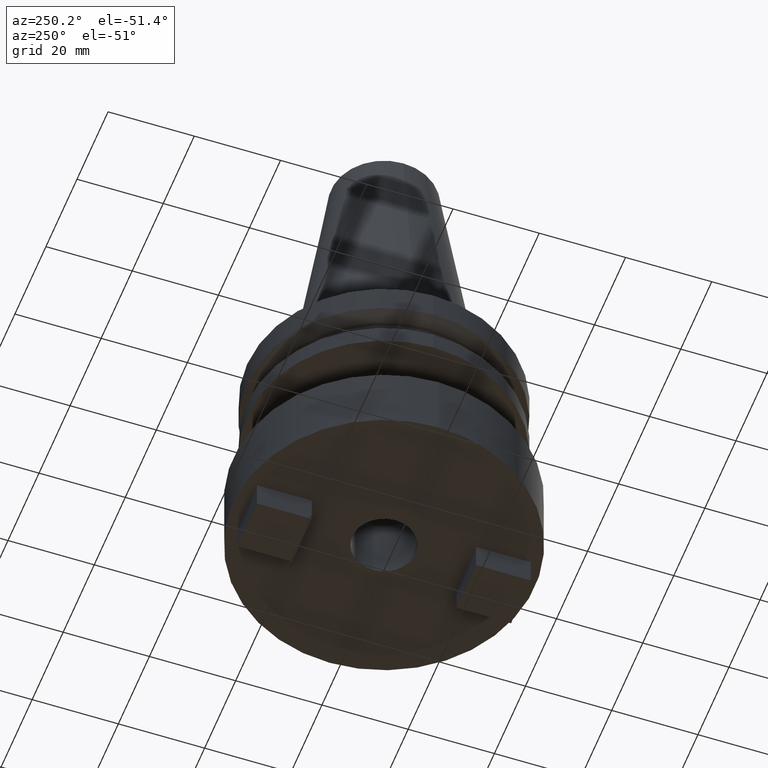
[diagram: clean part render]
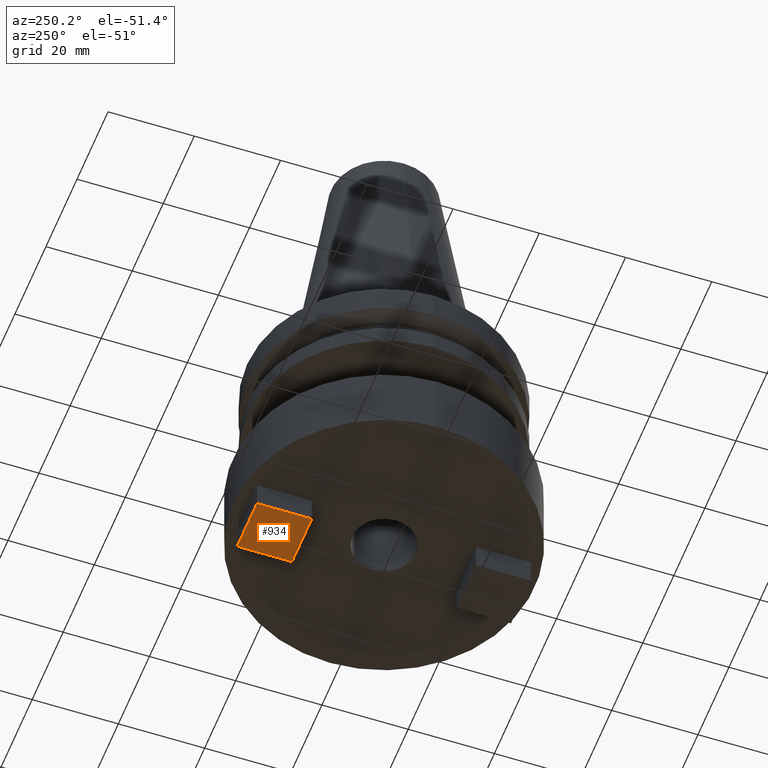
[diagram: same view with one face highlighted and labeled with its STEP entity id]
A machine part, auxiliary view. The second image highlights one B-rep face of the part: STEP entity #934.
In plain terms, the highlighted planar face has unit normal (-0, 0, -1).
Its self-contained STEP definition (entity closure, byte-faithful):
#45 = CARTESIAN_POINT ( 'NONE',  ( 6.349999999999996092, 31.75000000000000000, -57.20000000000000284 ) ) ;
#74 = EDGE_CURVE ( 'NONE', #1075, #830, #782, .T. ) ;
#83 = VECTOR ( 'NONE', #1043, 1000.000000000000000 ) ;
#89 = CARTESIAN_POINT ( 'NONE',  ( 6.349999999999996092, 31.75000000000000000, -57.20000000000000284 ) ) ;
#126 = ORIENTED_EDGE ( 'NONE', *, *, #74, .T. ) ;
#166 = DIRECTION ( 'NONE',  ( 1.000000000000000000, -0.000000000000000000, -0.000000000000000000 ) ) ;
#221 = DIRECTION ( 'NONE',  ( -0.000000000000000000, 0.000000000000000000, -1.000000000000000000 ) ) ;
#248 = DIRECTION ( 'NONE',  ( -0.000000000000000000, 1.000000000000000000, -0.000000000000000000 ) ) ;
#249 = VERTEX_POINT ( 'NONE', #45 ) ;
#335 = CARTESIAN_POINT ( 'NONE',  ( 6.349999999999996092, 31.75000000000000000, -57.20000000000000284 ) ) ;
#349 = VECTOR ( 'NONE', #1019, 1000.000000000000000 ) ;
#359 = EDGE_LOOP ( 'NONE', ( #594, #958, #989, #126 ) ) ;
#409 = AXIS2_PLACEMENT_3D ( 'NONE', #983, #221, #567 ) ;
#434 = CARTESIAN_POINT ( 'NONE',  ( -6.350000000000003197, 31.75000000000000000, -57.20000000000000284 ) ) ;
#484 = FACE_OUTER_BOUND ( 'NONE', #359, .T. ) ;
#528 = VECTOR ( 'NONE', #166, 1000.000000000000000 ) ;
#545 = EDGE_CURVE ( 'NONE', #1010, #249, #936, .T. ) ;
#562 = CARTESIAN_POINT ( 'NONE',  ( -6.350000000000003197, 19.05000000000000071, -57.20000000000000284 ) ) ;
#567 = DIRECTION ( 'NONE',  ( -1.000000000000000000, 0.000000000000000000, 0.000000000000000000 ) ) ;
#594 = ORIENTED_EDGE ( 'NONE', *, *, #1081, .T. ) ;
#604 = EDGE_CURVE ( 'NONE', #249, #1075, #996, .T. ) ;
#652 = PLANE ( 'NONE',  #409 ) ;
#692 = CARTESIAN_POINT ( 'NONE',  ( 6.349999999999996092, 19.05000000000000071, -57.20000000000000284 ) ) ;
#736 = VECTOR ( 'NONE', #248, 1000.000000000000000 ) ;
#782 = LINE ( 'NONE', #692, #83 ) ;
#830 = VERTEX_POINT ( 'NONE', #562 ) ;
#834 = CARTESIAN_POINT ( 'NONE',  ( 6.349999999999996092, 19.05000000000000071, -57.20000000000000284 ) ) ;
#858 = CARTESIAN_POINT ( 'NONE',  ( -6.350000000000003197, 31.75000000000000000, -57.20000000000000284 ) ) ;
#928 = LINE ( 'NONE', #858, #736 ) ;
#934 = ADVANCED_FACE ( 'NONE', ( #484 ), #652, .T. ) ;
#936 = LINE ( 'NONE', #335, #528 ) ;
#958 = ORIENTED_EDGE ( 'NONE', *, *, #545, .T. ) ;
#983 = CARTESIAN_POINT ( 'NONE',  ( 0.000000000000000000, 0.000000000000000000, -57.20000000000000284 ) ) ;
#989 = ORIENTED_EDGE ( 'NONE', *, *, #604, .T. ) ;
#996 = LINE ( 'NONE', #89, #349 ) ;
#1010 = VERTEX_POINT ( 'NONE', #434 ) ;
#1019 = DIRECTION ( 'NONE',  ( 0.000000000000000000, -1.000000000000000000, 0.000000000000000000 ) ) ;
#1043 = DIRECTION ( 'NONE',  ( -1.000000000000000000, 0.000000000000000000, 0.000000000000000000 ) ) ;
#1075 = VERTEX_POINT ( 'NONE', #834 ) ;
#1081 = EDGE_CURVE ( 'NONE', #830, #1010, #928, .T. ) ;